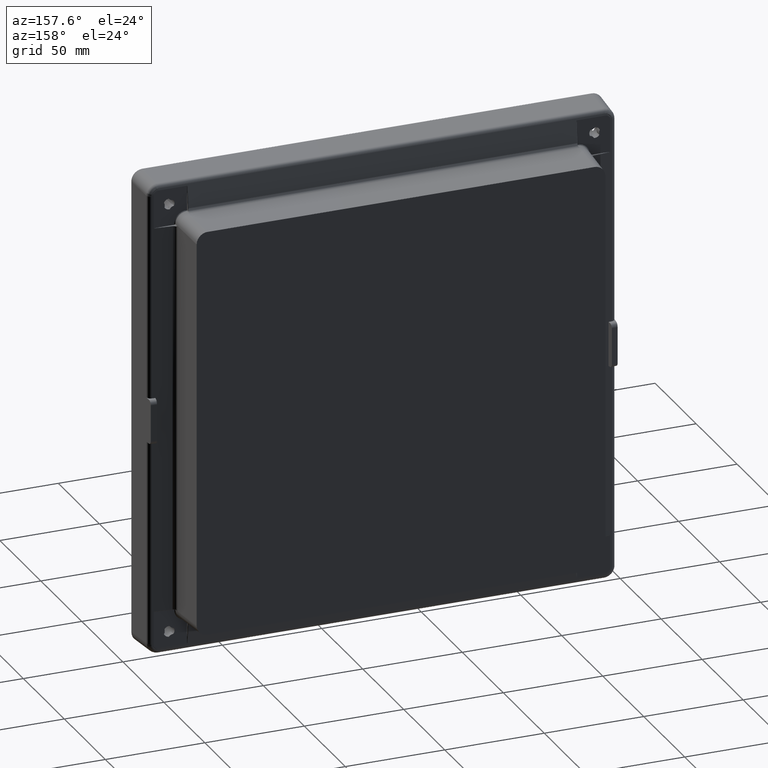
[diagram: clean part render]
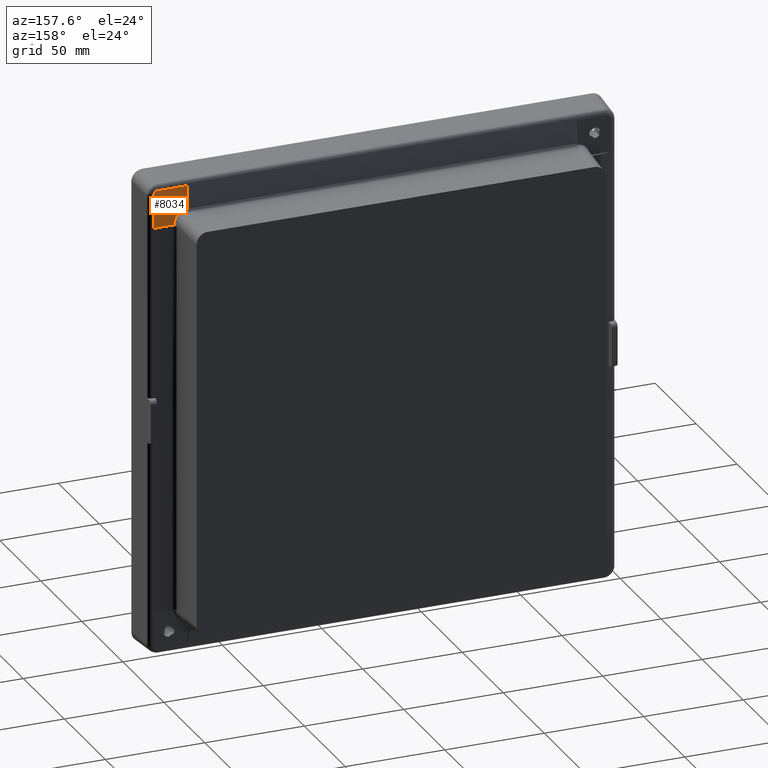
[diagram: same view with one face highlighted and labeled with its STEP entity id]
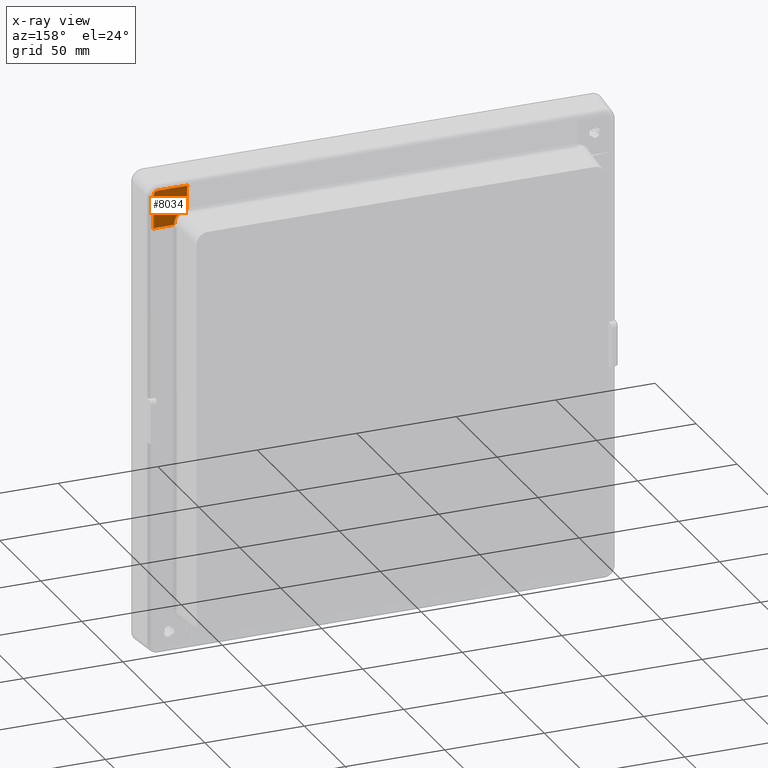
[diagram: x-ray of the same camera — body ghosted, the highlighted face saturated]
A machine part, auxiliary view. The second image highlights one B-rep face of the part: STEP entity #8034.
The next image is the same camera in x-ray: the body ghosted, the highlighted face saturated — about 0% of this face is hidden behind the body in this view.
In plain terms, the highlighted planar face has unit normal (0, 1, 0).
Its self-contained STEP definition (entity closure, byte-faithful):
#61 = CARTESIAN_POINT ( 'NONE',  ( 138.7440108813361500, 10.26305314132459900, 97.38491198252876300 ) ) ;
#175 =( BOUNDED_CURVE ( )  B_SPLINE_CURVE ( 3, ( #2321, #2353, #2352, #2351 ),
 .UNSPECIFIED., .F., .T. ) 
 B_SPLINE_CURVE_WITH_KNOTS ( ( 4, 4 ),
 ( 1.623398590677986900, 3.142076313409894800 ),
 .UNSPECIFIED. ) 
 CURVE ( )  GEOMETRIC_REPRESENTATION_ITEM ( )  RATIONAL_B_SPLINE_CURVE ( ( 1.000000000000000000, 0.8168608832509658400, 0.8168608832509658400, 1.000000000000000000 ) ) 
 REPRESENTATION_ITEM ( '' )  );
#588 = VERTEX_POINT ( 'NONE', #949 ) ;
#687 = EDGE_CURVE ( 'NONE', #3215, #837, #1231, .T. ) ;
#827 = EDGE_CURVE ( 'NONE', #852, #6751, #1546, .T. ) ;
#836 = EDGE_CURVE ( 'NONE', #837, #852, #1598, .T. ) ;
#837 = VERTEX_POINT ( 'NONE', #1594 ) ;
#852 = VERTEX_POINT ( 'NONE', #1614 ) ;
#949 = CARTESIAN_POINT ( 'NONE',  ( 138.7440108813354400, 10.26305314132457300, 113.9040984395494600 ) ) ;
#1227 = DIRECTION ( 'NONE',  ( 0.0000000000000000000, 0.0000000000000000000, -1.000000000000000000 ) ) ;
#1228 = DIRECTION ( 'NONE',  ( 0.0000000000000000000, -1.000000000000000000, 0.0000000000000000000 ) ) ;
#1229 = CARTESIAN_POINT ( 'NONE',  ( 131.0000000000000000, 10.26305314133479900, 108.7000000000000000 ) ) ;
#1230 = AXIS2_PLACEMENT_3D ( 'NONE', #1229, #1228, #1227 ) ;
#1231 = CIRCLE ( 'NONE', #1230, 2.752651079563892100 ) ;
#1540 = CARTESIAN_POINT ( 'NONE',  ( 131.0000000000000000, 10.26305314132459900, 105.9473489204361800 ) ) ;
#1541 = CARTESIAN_POINT ( 'NONE',  ( 130.9610866866492500, 10.26305314132459900, 105.9473496605078700 ) ) ;
#1542 = CARTESIAN_POINT ( 'NONE',  ( 130.8833438343820600, 10.26305314132459900, 105.9489968664680800 ) ) ;
#1543 = CARTESIAN_POINT ( 'NONE',  ( 130.7668554057823700, 10.26305314132459900, 105.9564128408475300 ) ) ;
#1544 = CARTESIAN_POINT ( 'NONE',  ( 130.6895313002532900, 10.26305314132459900, 105.9646376247488500 ) ) ;
#1545 = CARTESIAN_POINT ( 'NONE',  ( 130.6509313927324700, 10.26305314132969900, 105.9695726933814500 ) ) ;
#1546 = B_SPLINE_CURVE_WITH_KNOTS ( 'NONE', 3,
 ( #1545, #1544, #1543, #1542, #1541, #1540 ),
 .UNSPECIFIED., .F., .F.,
 ( 4, 1, 1, 4 ),
 ( 0.0000000000000000000, 0.0001166613868238173900, 0.0002333227736479351300, 0.0003499841604721835700 ),
 .UNSPECIFIED. ) ;
#1566 = CARTESIAN_POINT ( 'NONE',  ( 128.0460813527919900, 10.26305314133479900, 104.4813669719120000 ) ) ;
#1594 = CARTESIAN_POINT ( 'NONE',  ( 128.5536248036619900, 10.26305314133224700, 107.4381218899712800 ) ) ;
#1595 = DIRECTION ( 'NONE',  ( 0.0000000000000000000, 0.0000000000000000000, -1.000000000000000000 ) ) ;
#1596 = DIRECTION ( 'NONE',  ( -0.0000000000000000000, 1.000000000000000000, -0.0000000000000000000 ) ) ;
#1597 = AXIS2_PLACEMENT_3D ( 'NONE', #1566, #1596, #1595 ) ;
#1598 = CIRCLE ( 'NONE', #1597, 2.999999999998101500 ) ;
#1614 = CARTESIAN_POINT ( 'NONE',  ( 130.6509313927324700, 10.26305314132969900, 105.9695726933814500 ) ) ;
#1724 = CARTESIAN_POINT ( 'NONE',  ( 128.8086761244434500, 10.26305314132459900, 110.3652998820031900 ) ) ;
#1730 = CARTESIAN_POINT ( 'NONE',  ( 133.5391543789313300, 10.26305314133224700, 109.7629125108781100 ) ) ;
#1809 = DIRECTION ( 'NONE',  ( 0.0000000000000000000, 0.0000000000000000000, -1.000000000000000000 ) ) ;
#1810 = DIRECTION ( 'NONE',  ( -0.0000000000000000000, 1.000000000000000000, -0.0000000000000000000 ) ) ;
#1811 = CARTESIAN_POINT ( 'NONE',  ( 136.1304026951719900, 10.26305314133479900, 108.2511479248500000 ) ) ;
#1812 = AXIS2_PLACEMENT_3D ( 'NONE', #1811, #1810, #1809 ) ;
#1813 = CIRCLE ( 'NONE', #1812, 2.999999999998115300 ) ;
#1836 = DIRECTION ( 'NONE',  ( 0.0000000000000000000, 0.0000000000000000000, -1.000000000000000000 ) ) ;
#1837 = DIRECTION ( 'NONE',  ( 0.0000000000000000000, -1.000000000000000000, 0.0000000000000000000 ) ) ;
#1838 = AXIS2_PLACEMENT_3D ( 'NONE', #1846, #1837, #1836 ) ;
#1839 = CIRCLE ( 'NONE', #1838, 2.752651079563878300 ) ;
#1846 = CARTESIAN_POINT ( 'NONE',  ( 131.0000000000000000, 10.26305314133479900, 108.7000000000000000 ) ) ;
#2321 = CARTESIAN_POINT ( 'NONE',  ( 135.7770406300940400, 10.26305314132459900, 97.66967373504915900 ) ) ;
#2351 = CARTESIAN_POINT ( 'NONE',  ( 138.7440108813361500, 10.26305314132459900, 97.38491198252876300 ) ) ;
#2352 = CARTESIAN_POINT ( 'NONE',  ( 138.7440108813359200, 10.26305314132459900, 97.55347208294446700 ) ) ;
#2353 = CARTESIAN_POINT ( 'NONE',  ( 137.5332905444637400, 10.26305314132459900, 97.66967373504918700 ) ) ;
#2637 = CARTESIAN_POINT ( 'NONE',  ( 136.2040984395498000, 10.26305314132459900, 116.4440108813355400 ) ) ;
#2661 = CARTESIAN_POINT ( 'NONE',  ( 138.7440108813354400, 10.26305314132457300, 113.9040984395494600 ) ) ;
#2662 = CARTESIAN_POINT ( 'NONE',  ( 138.7440108813349000, 10.26305314132459900, 115.5960736569352500 ) ) ;
#2663 = CARTESIAN_POINT ( 'NONE',  ( 137.8960736569354100, 10.26305314132459900, 116.4440108813348200 ) ) ;
#2664 = CARTESIAN_POINT ( 'NONE',  ( 136.2040984395498000, 10.26305314132459900, 116.4440108813355400 ) ) ;
#2665 =( BOUNDED_CURVE ( )  B_SPLINE_CURVE ( 3, ( #2664, #2663, #2662, #2661 ),
 .UNSPECIFIED., .F., .T. ) 
 B_SPLINE_CURVE_WITH_KNOTS ( ( 4, 4 ),
 ( 6.215360135415693300, 6.351010478943484500 ),
 .UNSPECIFIED. ) 
 CURVE ( )  GEOMETRIC_REPRESENTATION_ITEM ( )  RATIONAL_B_SPLINE_CURVE ( ( 1.000000000000000000, 0.9984671697776039700, 0.9984671697776039700, 1.000000000000000000 ) ) 
 REPRESENTATION_ITEM ( '' )  );
#2958 = CARTESIAN_POINT ( 'NONE',  ( 128.4366184595570000, 10.26305314132459900, 97.66967373504920100 ) ) ;
#3029 = CARTESIAN_POINT ( 'NONE',  ( 135.7770406300940400, 10.26305314132459900, 97.66967373504915900 ) ) ;
#3083 = CARTESIAN_POINT ( 'NONE',  ( 128.4366184595570000, 10.26305314132459900, 98.14484125102930500 ) ) ;
#3084 = DIRECTION ( 'NONE',  ( 0.0000000000000000000, 0.0000000000000000000, -1.000000000000000000 ) ) ;
#3085 = VECTOR ( 'NONE', #3084, 1000.000000000000000 ) ;
#3093 = CARTESIAN_POINT ( 'NONE',  ( 128.4366184595570000, 10.26305314132459900, 97.90725749303923900 ) ) ;
#3094 = LINE ( 'NONE', #3093, #3085 ) ;
#3096 = DIRECTION ( 'NONE',  ( 1.000000000000000000, 0.0000000000000000000, 0.0000000000000000000 ) ) ;
#3105 = VECTOR ( 'NONE', #3096, 1000.000000000000000 ) ;
#3107 = CARTESIAN_POINT ( 'NONE',  ( 132.1068295448255000, 10.26305314132459900, 97.66967373504920100 ) ) ;
#3108 = LINE ( 'NONE', #3107, #3105 ) ;
#3215 = VERTEX_POINT ( 'NONE', #1724 ) ;
#3231 = VERTEX_POINT ( 'NONE', #1730 ) ;
#3273 = EDGE_CURVE ( 'NONE', #6724, #3231, #1813, .T. ) ;
#3284 = EDGE_CURVE ( 'NONE', #3231, #6503, #1839, .T. ) ;
#3330 = VERTEX_POINT ( 'NONE', #4336 ) ;
#3332 = VERTEX_POINT ( 'NONE', #4333 ) ;
#3334 = EDGE_CURVE ( 'NONE', #3332, #3330, #4328, .T. ) ;
#3342 = VERTEX_POINT ( 'NONE', #4370 ) ;
#3347 = EDGE_CURVE ( 'NONE', #3332, #3342, #4357, .T. ) ;
#3356 = EDGE_CURVE ( 'NONE', #6513, #3215, #4378, .T. ) ;
#3719 = VERTEX_POINT ( 'NONE', #5375 ) ;
#3723 = EDGE_CURVE ( 'NONE', #3342, #3719, #5372, .T. ) ;
#4327 = CARTESIAN_POINT ( 'NONE',  ( 121.9696737350492700, 10.26305314132459900, 113.4770406300942400 ) ) ;
#4328 =( BOUNDED_CURVE ( )  B_SPLINE_CURVE ( 3, ( #4327, #4374, #4373, #4372 ),
 .UNSPECIFIED., .F., .T. ) 
 B_SPLINE_CURVE_WITH_KNOTS ( ( 4, 4 ),
 ( 4.764991244267962500, 6.283668966999726100 ),
 .UNSPECIFIED. ) 
 CURVE ( )  GEOMETRIC_REPRESENTATION_ITEM ( )  RATIONAL_B_SPLINE_CURVE ( ( 1.000000000000000000, 0.8168608832509989300, 0.8168608832509989300, 1.000000000000000000 ) ) 
 REPRESENTATION_ITEM ( '' )  );
#4333 = CARTESIAN_POINT ( 'NONE',  ( 121.9696737350492700, 10.26305314132459900, 113.4770406300942400 ) ) ;
#4336 = CARTESIAN_POINT ( 'NONE',  ( 121.6849119825291400, 10.26305314132459900, 116.4440108813359800 ) ) ;
#4353 = DIRECTION ( 'NONE',  ( 0.0000000000000000000, 0.0000000000000000000, -1.000000000000000000 ) ) ;
#4354 = VECTOR ( 'NONE', #4353, 1000.000000000000000 ) ;
#4355 = CARTESIAN_POINT ( 'NONE',  ( 121.9696737350490000, 10.26305314132459900, 108.8068295448255000 ) ) ;
#4357 = LINE ( 'NONE', #4355, #4354 ) ;
#4370 = CARTESIAN_POINT ( 'NONE',  ( 121.9696737350490000, 10.26305314132459900, 104.1366184595570000 ) ) ;
#4372 = CARTESIAN_POINT ( 'NONE',  ( 121.6849119825291400, 10.26305314132459900, 116.4440108813359800 ) ) ;
#4373 = CARTESIAN_POINT ( 'NONE',  ( 121.8534720829448800, 10.26305314132460100, 116.4440108813357700 ) ) ;
#4374 = CARTESIAN_POINT ( 'NONE',  ( 121.9696737350495500, 10.26305314132460100, 115.2332905444638800 ) ) ;
#4375 = DIRECTION ( 'NONE',  ( -0.0000000000000000000, 1.000000000000000000, -0.0000000000000000000 ) ) ;
#4376 = CARTESIAN_POINT ( 'NONE',  ( 128.8235159520350000, 10.26305314133479900, 113.3674851032390100 ) ) ;
#4377 = AXIS2_PLACEMENT_3D ( 'NONE', #4376, #4375, #4416 ) ;
#4378 = CIRCLE ( 'NONE', #4377, 2.999999999999531000 ) ;
#4416 = DIRECTION ( 'NONE',  ( 0.0000000000000000000, 0.0000000000000000000, -1.000000000000000000 ) ) ;
#5371 = CARTESIAN_POINT ( 'NONE',  ( 122.2072574930390500, 10.26305314132459900, 104.1366184595570000 ) ) ;
#5372 = LINE ( 'NONE', #5371, #5410 ) ;
#5375 = CARTESIAN_POINT ( 'NONE',  ( 122.4448412510291200, 10.26305314132459900, 104.1366184595570000 ) ) ;
#5409 = DIRECTION ( 'NONE',  ( 1.000000000000000000, 0.0000000000000000000, 0.0000000000000000000 ) ) ;
#5410 = VECTOR ( 'NONE', #5409, 1000.000000000000000 ) ;
#6494 = EDGE_CURVE ( 'NONE', #6503, #6513, #9728, .T. ) ;
#6503 = VERTEX_POINT ( 'NONE', #9720 ) ;
#6513 = VERTEX_POINT ( 'NONE', #9701 ) ;
#6724 = VERTEX_POINT ( 'NONE', #10218 ) ;
#6739 = EDGE_CURVE ( 'NONE', #6751, #6724, #10197, .T. ) ;
#6751 = VERTEX_POINT ( 'NONE', #10250 ) ;
#7694 = EDGE_CURVE ( 'NONE', #8499, #588, #13795, .T. ) ;
#8007 = ORIENTED_EDGE ( 'NONE', *, *, #687, .T. ) ;
#8026 = ORIENTED_EDGE ( 'NONE', *, *, #3284, .T. ) ;
#8031 = EDGE_LOOP ( 'NONE', ( #8032, #8026, #8036, #8042, #8007, #8412, #8417, #8432 ) ) ;
#8032 = ORIENTED_EDGE ( 'NONE', *, *, #3273, .T. ) ;
#8034 = ADVANCED_FACE ( 'NONE', ( #14374, #14373 ), #14381, .T. ) ;
#8036 = ORIENTED_EDGE ( 'NONE', *, *, #6494, .T. ) ;
#8042 = ORIENTED_EDGE ( 'NONE', *, *, #3356, .T. ) ;
#8053 = EDGE_CURVE ( 'NONE', #12367, #3719, #14212, .T. ) ;
#8074 = EDGE_CURVE ( 'NONE', #9583, #3330, #14577, .T. ) ;
#8077 = ORIENTED_EDGE ( 'NONE', *, *, #7694, .F. ) ;
#8080 = ORIENTED_EDGE ( 'NONE', *, *, #9602, .T. ) ;
#8110 = ORIENTED_EDGE ( 'NONE', *, *, #8074, .F. ) ;
#8121 = ORIENTED_EDGE ( 'NONE', *, *, #3334, .T. ) ;
#8146 = ORIENTED_EDGE ( 'NONE', *, *, #3347, .F. ) ;
#8148 = ORIENTED_EDGE ( 'NONE', *, *, #3723, .F. ) ;
#8155 = EDGE_LOOP ( 'NONE', ( #8159, #8148, #8146, #8121, #8110, #8080, #8077, #9510, #9217, #9138 ) ) ;
#8159 = ORIENTED_EDGE ( 'NONE', *, *, #8053, .T. ) ;
#8412 = ORIENTED_EDGE ( 'NONE', *, *, #836, .T. ) ;
#8417 = ORIENTED_EDGE ( 'NONE', *, *, #827, .T. ) ;
#8432 = ORIENTED_EDGE ( 'NONE', *, *, #6739, .T. ) ;
#8499 = VERTEX_POINT ( 'NONE', #61 ) ;
#8647 = EDGE_CURVE ( 'NONE', #12211, #8499, #175, .T. ) ;
#9138 = ORIENTED_EDGE ( 'NONE', *, *, #12277, .F. ) ;
#9217 = ORIENTED_EDGE ( 'NONE', *, *, #12394, .F. ) ;
#9510 = ORIENTED_EDGE ( 'NONE', *, *, #8647, .F. ) ;
#9583 = VERTEX_POINT ( 'NONE', #2637 ) ;
#9602 = EDGE_CURVE ( 'NONE', #9583, #588, #2665, .T. ) ;
#9701 = CARTESIAN_POINT ( 'NONE',  ( 128.8235159520350000, 10.26305314133479900, 110.3674851032388900 ) ) ;
#9720 = CARTESIAN_POINT ( 'NONE',  ( 131.1303699746713700, 10.26305314133479900, 111.4495631761935400 ) ) ;
#9724 = DIRECTION ( 'NONE',  ( 4.625929269272209000E-014, 0.0000000000000000000, -1.000000000000000000 ) ) ;
#9725 = DIRECTION ( 'NONE',  ( -0.0000000000000000000, 1.000000000000000000, -0.0000000000000000000 ) ) ;
#9726 = CARTESIAN_POINT ( 'NONE',  ( 128.8235159520350000, 10.26305314133479900, 113.3674851032390100 ) ) ;
#9727 = AXIS2_PLACEMENT_3D ( 'NONE', #9726, #9725, #9724 ) ;
#9728 = CIRCLE ( 'NONE', #9727, 2.999999999999531000 ) ;
#10193 = DIRECTION ( 'NONE',  ( 0.0000000000000000000, 0.0000000000000000000, -1.000000000000000000 ) ) ;
#10194 = DIRECTION ( 'NONE',  ( 0.0000000000000000000, -1.000000000000000000, 0.0000000000000000000 ) ) ;
#10195 = CARTESIAN_POINT ( 'NONE',  ( 131.0000000000000000, 10.26305314133479900, 108.7000000000000000 ) ) ;
#10196 = AXIS2_PLACEMENT_3D ( 'NONE', #10195, #10194, #10193 ) ;
#10197 = CIRCLE ( 'NONE', #10196, 2.752651079563892100 ) ;
#10218 = CARTESIAN_POINT ( 'NONE',  ( 133.3160065725591600, 10.26305314133479900, 107.2123147019461700 ) ) ;
#10250 = CARTESIAN_POINT ( 'NONE',  ( 131.0000000000000000, 10.26305314132459900, 105.9473489204361800 ) ) ;
#11438 = VERTEX_POINT ( 'NONE', #2958 ) ;
#12211 = VERTEX_POINT ( 'NONE', #3029 ) ;
#12277 = EDGE_CURVE ( 'NONE', #12367, #11438, #3094, .T. ) ;
#12367 = VERTEX_POINT ( 'NONE', #3083 ) ;
#12394 = EDGE_CURVE ( 'NONE', #11438, #12211, #3108, .T. ) ;
#13794 = CARTESIAN_POINT ( 'NONE',  ( 138.7440108813360100, 10.26305314132459900, 105.6445052110394000 ) ) ;
#13795 = LINE ( 'NONE', #13794, #13857 ) ;
#13856 = DIRECTION ( 'NONE',  ( 0.0000000000000000000, 0.0000000000000000000, 1.000000000000000000 ) ) ;
#13857 = VECTOR ( 'NONE', #13856, 1000.000000000000000 ) ;
#14212 = B_SPLINE_CURVE_WITH_KNOTS ( 'NONE', 3,
 ( #14499, #14498, #14268, #14267, #14266, #14265, #14556, #14555, #14554, #14553, #14552, #14551, #14550, #14549, #14548, #14547, #14546, #14545 ),
 .UNSPECIFIED., .F., .F.,
 ( 4, 1, 1, 2, 2, 2, 1, 1, 2, 2, 4 ),
 ( 0.0000000000000000000, 0.1250000000000073300, 0.1875000000000079400, 0.2187500000000082400, 0.2500000000000085500, 0.5000000000000055500, 0.6250000000000024400, 0.6874999999999960000, 0.7187499999999926700, 0.7499999999999934500, 1.000000000000000000 ),
 .UNSPECIFIED. ) ;
#14265 = CARTESIAN_POINT ( 'NONE',  ( 128.0535790420343300, 10.26305314132460100, 100.2543340676608900 ) ) ;
#14266 = CARTESIAN_POINT ( 'NONE',  ( 128.1193744199747800, 10.26305314132459800, 100.0705505086579300 ) ) ;
#14267 = CARTESIAN_POINT ( 'NONE',  ( 128.2111142268891500, 10.26305314132459800, 99.79308182999848500 ) ) ;
#14268 = CARTESIAN_POINT ( 'NONE',  ( 128.3765009563814800, 10.26305314132460100, 99.13310153204075400 ) ) ;
#14373 = FACE_OUTER_BOUND ( 'NONE', #8155, .T. ) ;
#14374 = FACE_BOUND ( 'NONE', #8031, .T. ) ;
#14381 = PLANE ( 'NONE',  #14408 ) ;
#14405 = DIRECTION ( 'NONE',  ( 0.0000000000000000000, -0.0000000000000000000, 1.000000000000000000 ) ) ;
#14406 = DIRECTION ( 'NONE',  ( 0.0000000000000000000, 1.000000000000000000, 0.0000000000000000000 ) ) ;
#14407 = CARTESIAN_POINT ( 'NONE',  ( 122.4696737350490000, 10.26305314132459900, 98.16967373504890300 ) ) ;
#14408 = AXIS2_PLACEMENT_3D ( 'NONE', #14407, #14406, #14405 ) ;
#14498 = CARTESIAN_POINT ( 'NONE',  ( 128.4348218902752600, 10.26305314132460300, 98.54588405193018700 ) ) ;
#14499 = CARTESIAN_POINT ( 'NONE',  ( 128.4366184595570000, 10.26305314132459900, 98.14484125102930500 ) ) ;
#14545 = CARTESIAN_POINT ( 'NONE',  ( 122.4448412510291200, 10.26305314132459900, 104.1366184595570000 ) ) ;
#14546 = CARTESIAN_POINT ( 'NONE',  ( 123.2472738297326800, 10.26305314132459800, 104.1330230387478100 ) ) ;
#14547 = CARTESIAN_POINT ( 'NONE',  ( 124.0111016522490800, 10.26305314132459800, 103.9810935941457300 ) ) ;
#14548 = CARTESIAN_POINT ( 'NONE',  ( 124.8269776018695400, 10.26305314132459900, 103.6432971922014200 ) ) ;
#14549 = CARTESIAN_POINT ( 'NONE',  ( 124.9188325649387100, 10.26305314132459800, 103.6026954843739100 ) ) ;
#14550 = CARTESIAN_POINT ( 'NONE',  ( 125.0972622592282300, 10.26305314132460100, 103.5185360819783800 ) ) ;
#14551 = CARTESIAN_POINT ( 'NONE',  ( 125.3608286485915200, 10.26305314132460100, 103.3862722173663700 ) ) ;
#14552 = CARTESIAN_POINT ( 'NONE',  ( 125.9472698259430400, 10.26305314132460100, 103.0354832061408800 ) ) ;
#14553 = CARTESIAN_POINT ( 'NONE',  ( 126.4009958673936500, 10.26305314132460300, 102.6625097785806700 ) ) ;
#14554 = CARTESIAN_POINT ( 'NONE',  ( 127.2431975171605100, 10.26305314132460100, 101.8201667471614400 ) ) ;
#14555 = CARTESIAN_POINT ( 'NONE',  ( 127.6767025179150700, 10.26305314132459800, 101.1712270578803000 ) ) ;
#14556 = CARTESIAN_POINT ( 'NONE',  ( 128.0188463898701100, 10.26305314132460100, 100.3444614400872300 ) ) ;
#14574 = DIRECTION ( 'NONE',  ( -1.000000000000000000, 0.0000000000000000000, 0.0000000000000000000 ) ) ;
#14575 = VECTOR ( 'NONE', #14574, 1000.000000000000000 ) ;
#14576 = CARTESIAN_POINT ( 'NONE',  ( 128.9445052110397700, 10.26305314132462100, 116.4440108813360000 ) ) ;
#14577 = LINE ( 'NONE', #14576, #14575 ) ;